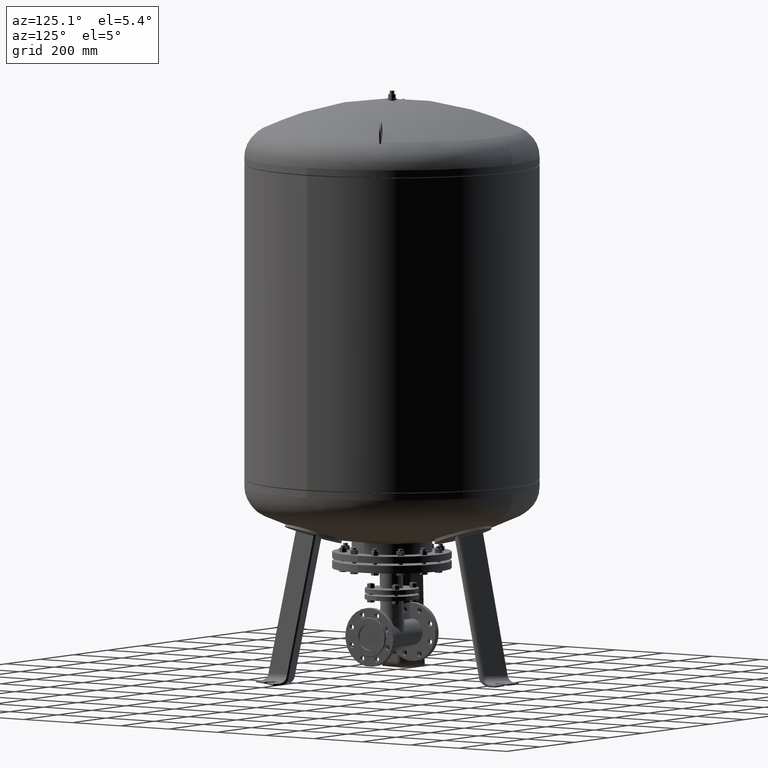
[diagram: clean part render]
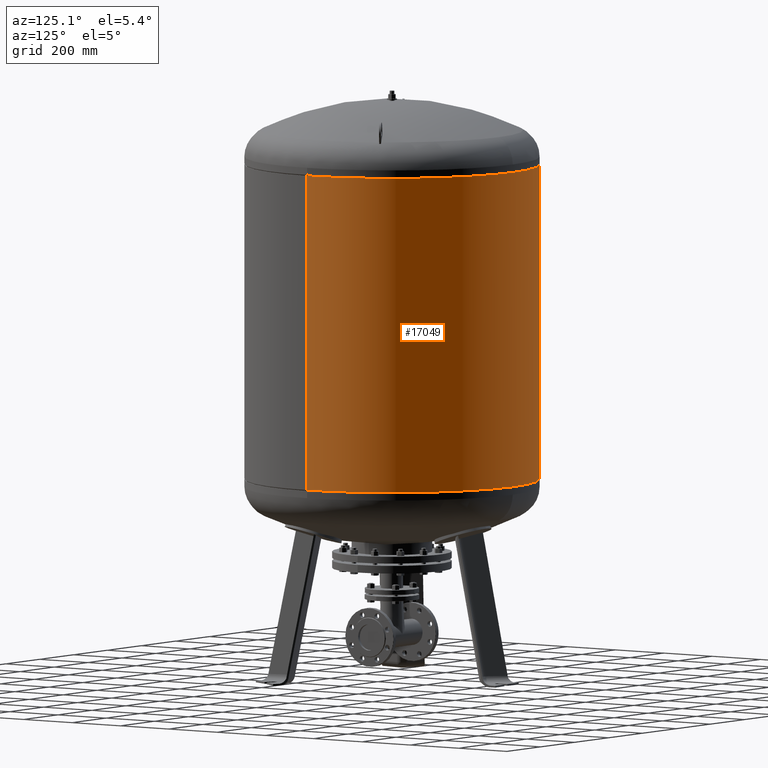
[diagram: same view with one face highlighted and labeled with its STEP entity id]
A machine part, auxiliary view. The second image highlights one B-rep face of the part: STEP entity #17049.
In plain terms, the highlighted cylindrical surface (partial cylindrical patch) has radius 500 mm, axis along (0, 0, 1).
Its self-contained STEP definition (entity closure, byte-faithful):
#16929=CARTESIAN_POINT('',(500.000000000000570,0.0,1748.500000000000000));
#16930=VERTEX_POINT('',#16929);
#16931=CARTESIAN_POINT('',(499.999999999999890,0.0,679.500000000000000));
#16932=VERTEX_POINT('',#16931);
#16933=CARTESIAN_POINT('',(500.000000000000570,0.0,1748.500000000000000));
#16934=DIRECTION('',(0.0,0.0,-1.0));
#16935=VECTOR('',#16934,1069.0);
#16936=LINE('',#16933,#16935);
#16937=EDGE_CURVE('',#16930,#16932,#16936,.T.);
#16939=CARTESIAN_POINT('',(-500.000000000000570,-6.123032E-014,1748.500000000000000));
#16940=VERTEX_POINT('',#16939);
#16948=CARTESIAN_POINT('',(-499.999999999999890,-6.123032E-014,679.500000000000000));
#16949=VERTEX_POINT('',#16948);
#16950=CARTESIAN_POINT('',(-500.000000000000570,-6.123032E-014,1748.500000000000000));
#16951=DIRECTION('',(0.0,0.0,-1.0));
#16952=VECTOR('',#16951,1069.0);
#16953=LINE('',#16950,#16952);
#16954=EDGE_CURVE('',#16940,#16949,#16953,.T.);
#17022=CARTESIAN_POINT('',(-1.659482E-014,0.0,679.500000000000000));
#17023=DIRECTION('',(0.0,0.0,1.0));
#17024=DIRECTION('',(1.0,0.0,0.0));
#17025=AXIS2_PLACEMENT_3D('',#17022,#17023,#17024);
#17026=CIRCLE('',#17025,499.999999999999890);
#17027=EDGE_CURVE('',#16932,#16949,#17026,.T.);
#17032=CARTESIAN_POINT('',(8.297411E-015,0.0,1481.250000000000000));
#17033=DIRECTION('',(3.104738E-017,0.0,1.0));
#17034=DIRECTION('',(1.0,0.0,0.0));
#17035=AXIS2_PLACEMENT_3D('',#17032,#17033,#17034);
#17036=CYLINDRICAL_SURFACE('',#17035,500.000000000000570);
#17037=ORIENTED_EDGE('',*,*,#16937,.T.);
#17038=ORIENTED_EDGE('',*,*,#17027,.T.);
#17039=ORIENTED_EDGE('',*,*,#16954,.F.);
#17040=CARTESIAN_POINT('',(1.659482E-014,0.0,1748.500000000000000));
#17041=DIRECTION('',(0.0,0.0,1.0));
#17042=DIRECTION('',(1.0,0.0,0.0));
#17043=AXIS2_PLACEMENT_3D('',#17040,#17041,#17042);
#17044=CIRCLE('',#17043,500.000000000000570);
#17045=EDGE_CURVE('',#16930,#16940,#17044,.T.);
#17046=ORIENTED_EDGE('',*,*,#17045,.F.);
#17047=EDGE_LOOP('',(#17037,#17038,#17039,#17046));
#17048=FACE_OUTER_BOUND('',#17047,.T.);
#17049=ADVANCED_FACE('',(#17048),#17036,.T.);